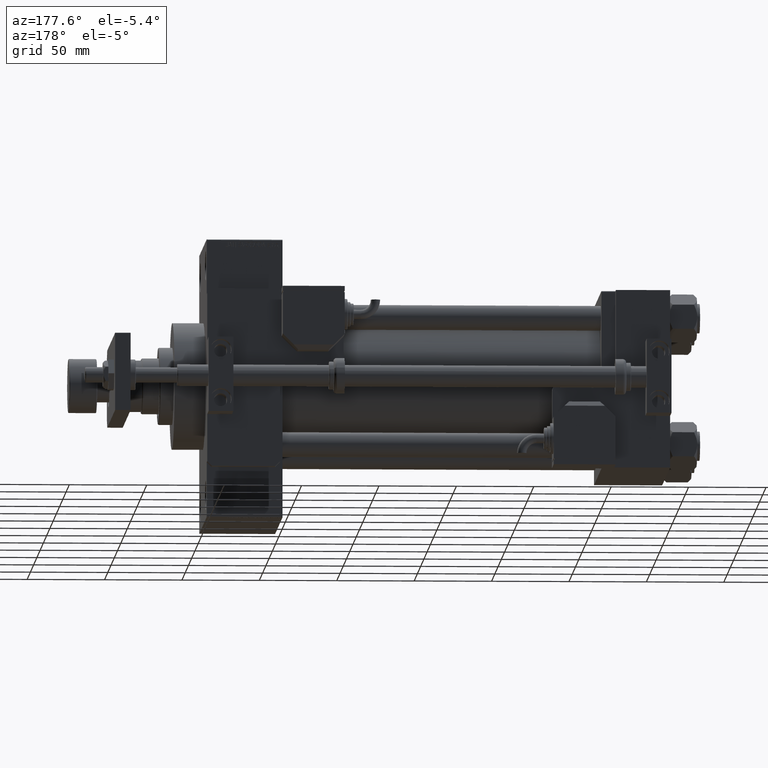
[diagram: clean part render]
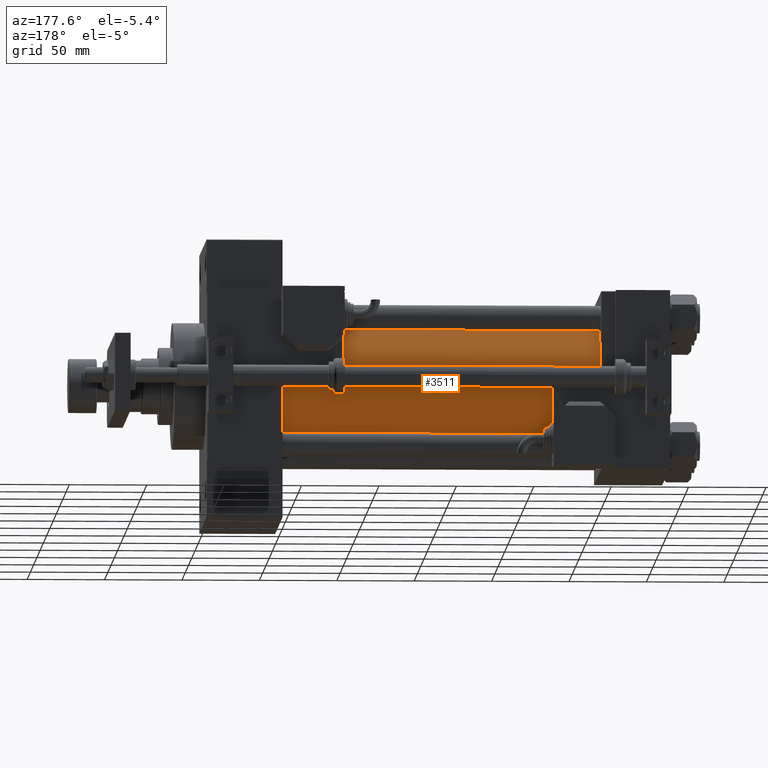
[diagram: same view with one face highlighted and labeled with its STEP entity id]
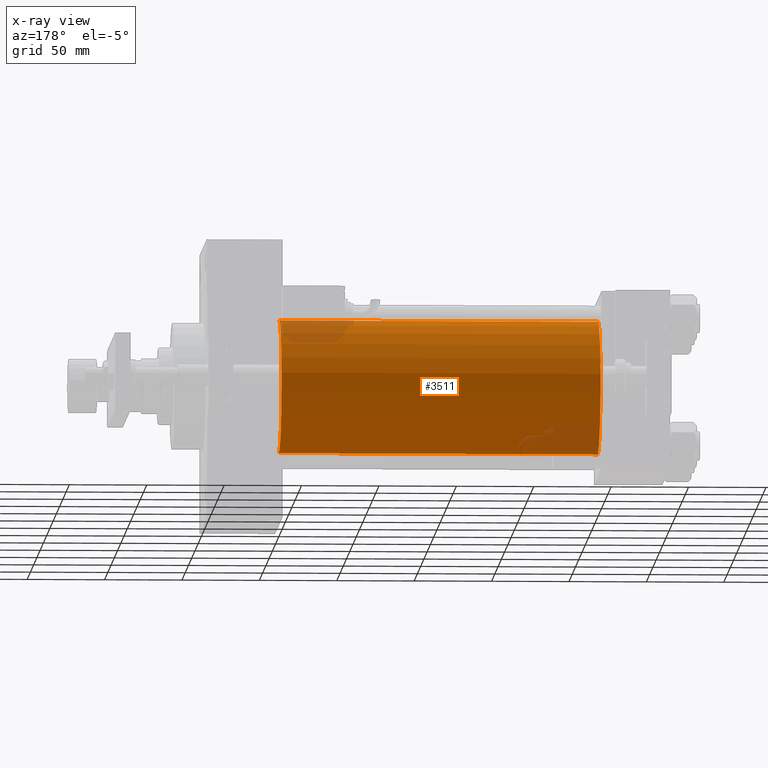
[diagram: x-ray of the same camera — body ghosted, the highlighted face saturated]
A machine part, auxiliary view. The second image highlights one B-rep face of the part: STEP entity #3511.
The next image is the same camera in x-ray: the body ghosted, the highlighted face saturated — about 8% of this face is hidden behind the body in this view.
In plain terms, the highlighted cylindrical surface (partial cylindrical patch) has radius 43 mm, axis along (-1, -0, -0).
Its self-contained STEP definition (entity closure, byte-faithful):
#3067 = ORIENTED_EDGE ( 'NONE', *, *, #34201, .T. ) ;
#3511 = ADVANCED_FACE ( 'NONE', ( #16633 ), #42479, .T. ) ;
#5180 = DIRECTION ( 'NONE',  ( -1.000000000000000000, -0.000000000000000000, -0.000000000000000000 ) ) ;
#6908 = VERTEX_POINT ( 'NONE', #36286 ) ;
#8480 = LINE ( 'NONE', #21793, #23028 ) ;
#10956 = DIRECTION ( 'NONE',  ( 0.000000000000000000, 0.000000000000000000, 1.000000000000000000 ) ) ;
#10984 = EDGE_LOOP ( 'NONE', ( #20242, #51381, #3067, #46426 ) ) ;
#11671 = AXIS2_PLACEMENT_3D ( 'NONE', #19121, #15303, #10956 ) ;
#12046 = VERTEX_POINT ( 'NONE', #50247 ) ;
#13409 = CIRCLE ( 'NONE', #45603, 43.00000000000000000 ) ;
#15303 = DIRECTION ( 'NONE',  ( 1.000000000000000000, -0.000000000000000000, 0.000000000000000000 ) ) ;
#16633 = FACE_OUTER_BOUND ( 'NONE', #10984, .T. ) ;
#16952 = CARTESIAN_POINT ( 'NONE',  ( 250.0000000000000000, 2.663896022368408223E-15, -43.00000000000000000 ) ) ;
#19121 = CARTESIAN_POINT ( 'NONE',  ( 43.99999999999998579, -2.602085213965210642E-15, 0.000000000000000000 ) ) ;
#20242 = ORIENTED_EDGE ( 'NONE', *, *, #34047, .F. ) ;
#21793 = CARTESIAN_POINT ( 'NONE',  ( 250.0000000000000000, -2.602085213965210642E-15, 43.00000000000000000 ) ) ;
#22671 = DIRECTION ( 'NONE',  ( 0.000000000000000000, 0.000000000000000000, -1.000000000000000000 ) ) ;
#23028 = VECTOR ( 'NONE', #41691, 1000.000000000000000 ) ;
#25069 = CARTESIAN_POINT ( 'NONE',  ( 250.0000000000000000, -2.602085213965210642E-15, 0.000000000000000000 ) ) ;
#26470 = CARTESIAN_POINT ( 'NONE',  ( 250.0000000000000000, -2.602085213965210642E-15, 0.000000000000000000 ) ) ;
#27650 = CARTESIAN_POINT ( 'NONE',  ( 250.0000000000000000, 2.663896022368408223E-15, -43.00000000000000000 ) ) ;
#29212 = LINE ( 'NONE', #16952, #38015 ) ;
#31913 = EDGE_CURVE ( 'NONE', #35486, #48585, #29212, .T. ) ;
#34047 = EDGE_CURVE ( 'NONE', #35486, #12046, #13409, .T. ) ;
#34201 = EDGE_CURVE ( 'NONE', #48585, #6908, #36023, .T. ) ;
#34297 = DIRECTION ( 'NONE',  ( 0.000000000000000000, 0.000000000000000000, 1.000000000000000000 ) ) ;
#35131 = EDGE_CURVE ( 'NONE', #12046, #6908, #8480, .T. ) ;
#35186 = DIRECTION ( 'NONE',  ( 1.000000000000000000, 0.000000000000000000, 0.000000000000000000 ) ) ;
#35486 = VERTEX_POINT ( 'NONE', #27650 ) ;
#36023 = CIRCLE ( 'NONE', #11671, 43.00000000000000000 ) ;
#36286 = CARTESIAN_POINT ( 'NONE',  ( 43.99999999999998579, -2.602085213965210642E-15, 43.00000000000000000 ) ) ;
#37285 = CARTESIAN_POINT ( 'NONE',  ( 43.99999999999998579, 2.663896022368408223E-15, -43.00000000000000000 ) ) ;
#37908 = DIRECTION ( 'NONE',  ( -1.000000000000000000, -0.000000000000000000, -0.000000000000000000 ) ) ;
#38015 = VECTOR ( 'NONE', #37908, 1000.000000000000000 ) ;
#41691 = DIRECTION ( 'NONE',  ( -1.000000000000000000, -0.000000000000000000, -0.000000000000000000 ) ) ;
#42479 = CYLINDRICAL_SURFACE ( 'NONE', #44414, 43.00000000000000000 ) ;
#44414 = AXIS2_PLACEMENT_3D ( 'NONE', #25069, #5180, #34297 ) ;
#45603 = AXIS2_PLACEMENT_3D ( 'NONE', #26470, #35186, #22671 ) ;
#46426 = ORIENTED_EDGE ( 'NONE', *, *, #35131, .F. ) ;
#48585 = VERTEX_POINT ( 'NONE', #37285 ) ;
#50247 = CARTESIAN_POINT ( 'NONE',  ( 250.0000000000000000, -2.602085213965210642E-15, 43.00000000000000000 ) ) ;
#51381 = ORIENTED_EDGE ( 'NONE', *, *, #31913, .T. ) ;